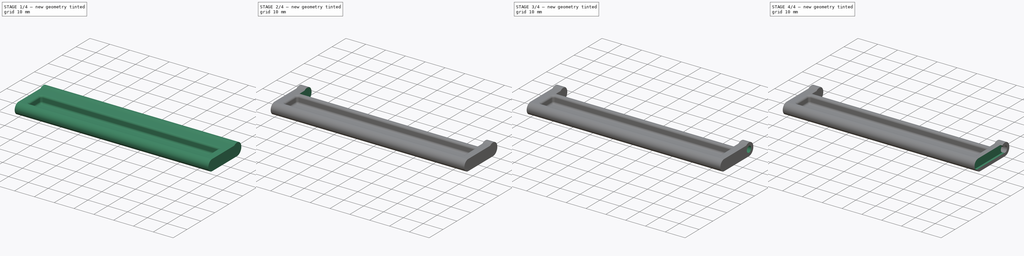
[diagram: build sequence overview — one tinted view per stage of 4, left to right]
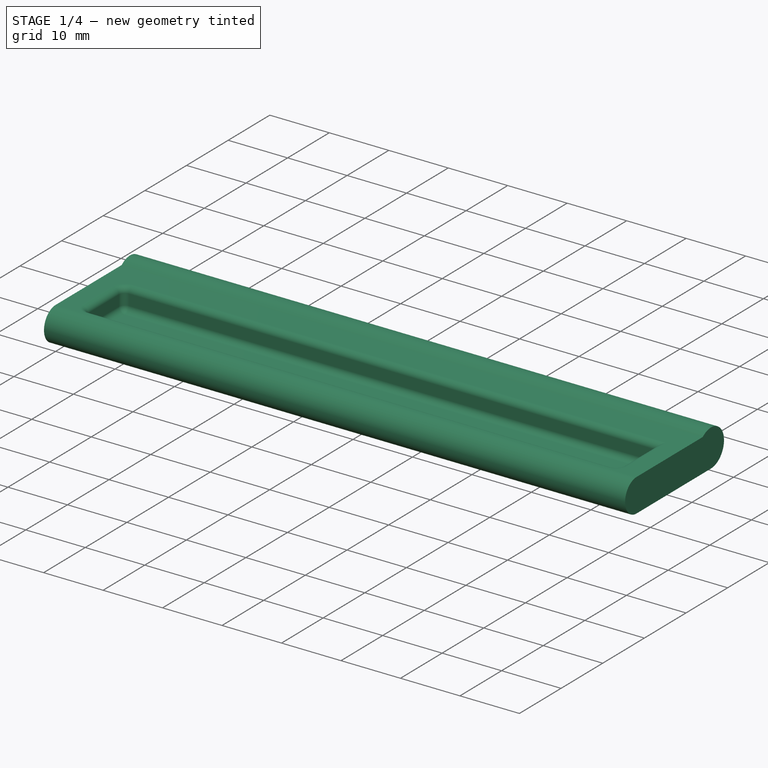
[diagram: stage 1 of 4 — iso view after this stage's code; geometry added in this stage tinted green]
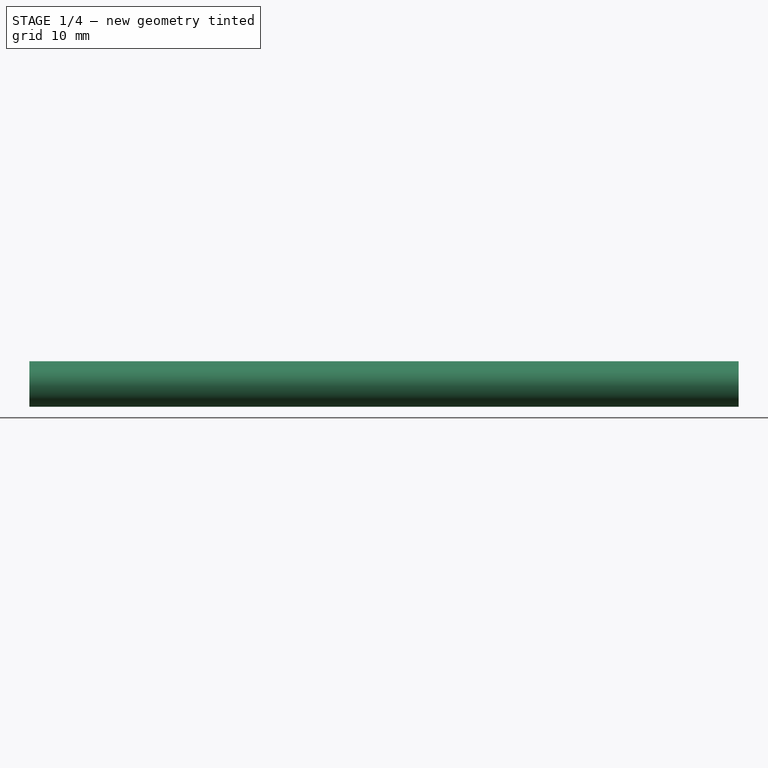
[diagram: stage 1 of 4 — front view after this stage's code; geometry added in this stage tinted green]
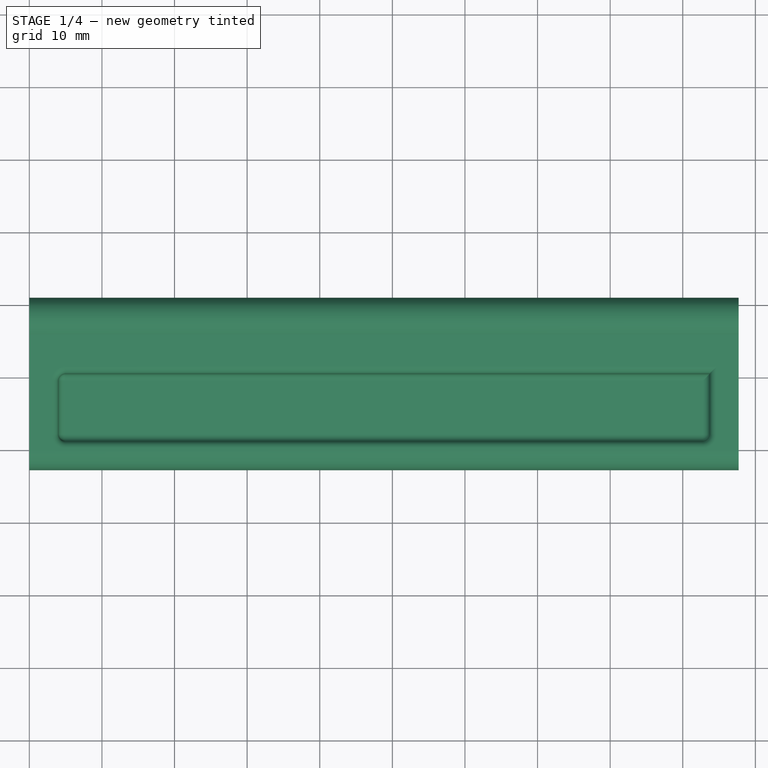
[diagram: stage 1 of 4 — top view after this stage's code; geometry added in this stage tinted green]
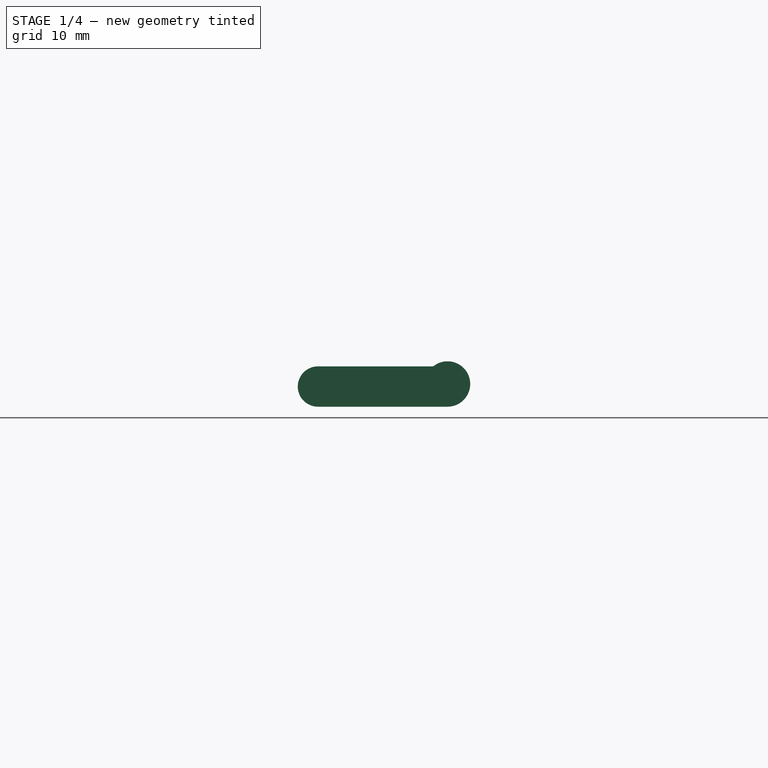
[diagram: stage 1 of 4 — right view after this stage's code; geometry added in this stage tinted green]
FCSTD DOCUMENT  (FreeCAD 0.19R24276 (Git))
Label: fechoLancheira
License: All rights reserved
LicenseURL: http://en.wikipedia.org/wiki/All_rights_reserved
objects: Sketcher::SketchObject×6, PartDesign::Pocket×5, PartDesign::Fillet×5, PartDesign::Pad×1, PartDesign::Body×1
note: 29 computed .brp shape members not serialized (recipe doc carries the construction recipe); baked Part::Feature solids carry a one-line shape summary decoded from their .brp

FEATURE [Sketcher::SketchObject] Sketch
  FullyConstrained = false
  MapMode = 5
  Placement = pos=(0,0,0) rot=(0.57735,0.57735,0.57735;2.0944rad)
  Support = -> [YZ_Plane]
  expr: Constraints[11] = 23.75 - 3.125 - 2.775
  expr: Constraints[7] = 6.25 / 2
  expr: Constraints[2] = 5.55 / 2
  sketch-geometry (4):
    g0: ArcOfCircle CenterX=5e-16 CenterY=2.775 CenterZ=0 NormalX=0 NormalY=0 NormalZ=1 AngleXU=0 Radius=2.775 StartAngle=1.5708 EndAngle=4.71239
    g1: LineSegment StartX=0 StartY=0 StartZ=0 EndX=17.85 EndY=0 EndZ=0
    g2: ArcOfCircle CenterX=17.85 CenterY=3.125 CenterZ=0 NormalX=0 NormalY=0 NormalZ=1 AngleXU=0 Radius=3.125 StartAngle=4.71239 EndAngle=8.53648
    g3: LineSegment StartX=0 StartY=5.55 StartZ=0 EndX=15.879 EndY=5.55 EndZ=0
  constraints (13):
    c: Coincident(g1,g0)
    c: Horizontal(g1)
    c: Distance(g0,g1) = 2.775
    c: DistanceX(g0) = 0
    c: DistanceY(g0) = 0
    c: DistanceX(g-2,g0) = 0
    c: Horizontal(g3)
    c: Radius(g2) = 3.125
    c: Coincident(g2,g1)
    c: Coincident(g2,g3)
    c: DistanceX(g2,g1) = 0
    c: DistanceX(g1,g1) = 17.85
    c: Coincident(g3,g0)
FEATURE [PartDesign::Pad] Pad
  Direction = (1,1,1)
  Length = 97.7
  Length2 = 100
  Placement = pos=(0,0,0) rot=(0.57735,0.57735,0.57735;2.0944rad)
  Profile = -> Sketch
  Type = 0
FEATURE [Sketcher::SketchObject] Sketch001
  FullyConstrained = true
  MapMode = 5
  Placement = pos=(-2.2e-15,3.1e-15,5.55) rot=(0,0,-1;1.5708rad)
  Support = -> [Pad]
  expr: Constraints[8] = 97.7 - 4 - 4
  sketch-geometry (4):
    g0: LineSegment StartX=-10.5 StartY=93.7 StartZ=0 EndX=-1.2 EndY=93.7 EndZ=0
    g1: LineSegment StartX=-1.2 StartY=93.7 StartZ=0 EndX=-1.2 EndY=4 EndZ=0
    g2: LineSegment StartX=-1.2 StartY=4 StartZ=0 EndX=-10.5 EndY=4 EndZ=0
    g3: LineSegment StartX=-10.5 StartY=4 StartZ=0 EndX=-10.5 EndY=93.7 EndZ=0
  constraints (12):
    c: Coincident(g0,g1)
    c: Coincident(g1,g2)
    c: Coincident(g2,g3)
    c: Coincident(g3,g0)
    c: Horizontal(g0)
    c: Horizontal(g2)
    c: Vertical(g1)
    c: Vertical(g3)
    c: DistanceY(g1,g1) = 89.7
    c: DistanceX(g2,g2) = 9.3
    c: DistanceX(g1) = -1.2
    c: DistanceY(g1) = 4
FEATURE [PartDesign::Pocket] Pocket
  BaseFeature = -> Pad
  Length = 3.8
  Length2 = 100
  Placement = pos=(0,0,0) rot=(0.57735,0.57735,0.57735;2.0944rad)
  Profile = -> Sketch001
  Type = 0
FEATURE [PartDesign::Fillet] Fillet
  Base = -> Pocket [Edge9,Edge8,Edge10,Edge11,Edge17,Edge19,Edge21,Edge20,Edge23,Edge22,Edge24]
  BaseFeature = -> Pocket
  Placement = pos=(0,0,0) rot=(0.57735,0.57735,0.57735;2.0944rad)
  Radius = 1
  SupportTransform = false
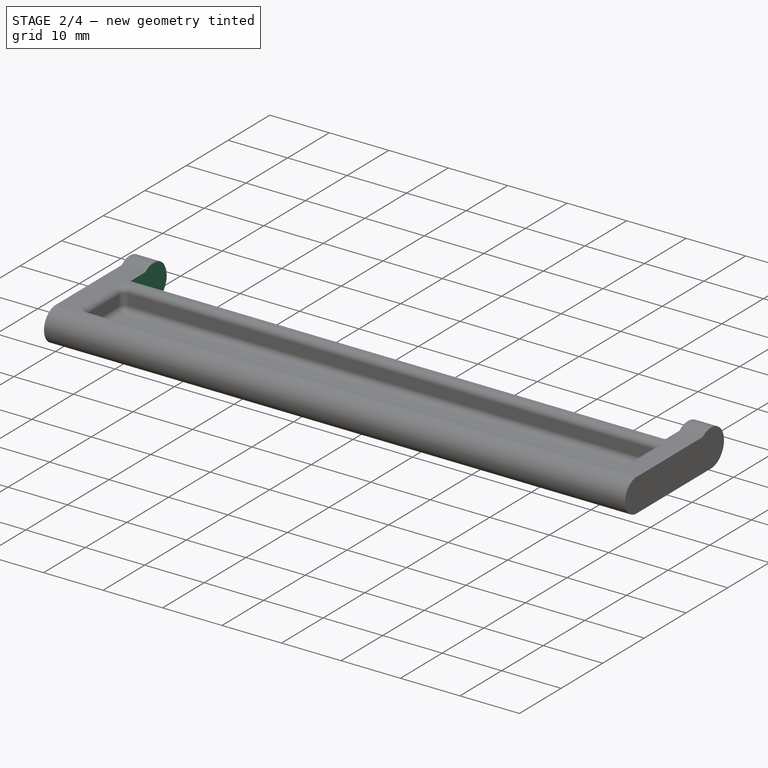
[diagram: stage 2 of 4 — iso view after this stage's code; geometry added in this stage tinted green]
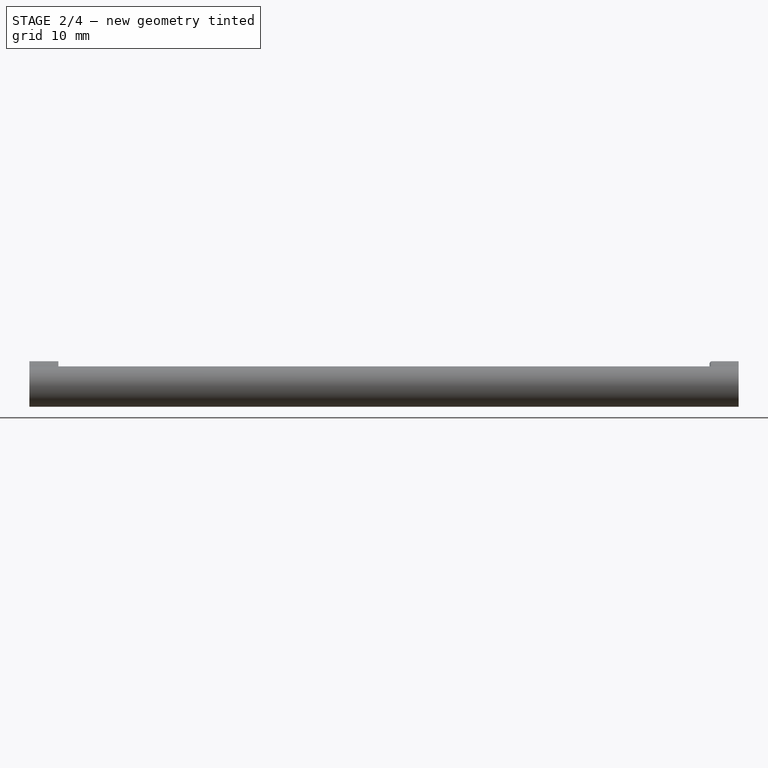
[diagram: stage 2 of 4 — front view after this stage's code; geometry added in this stage tinted green]
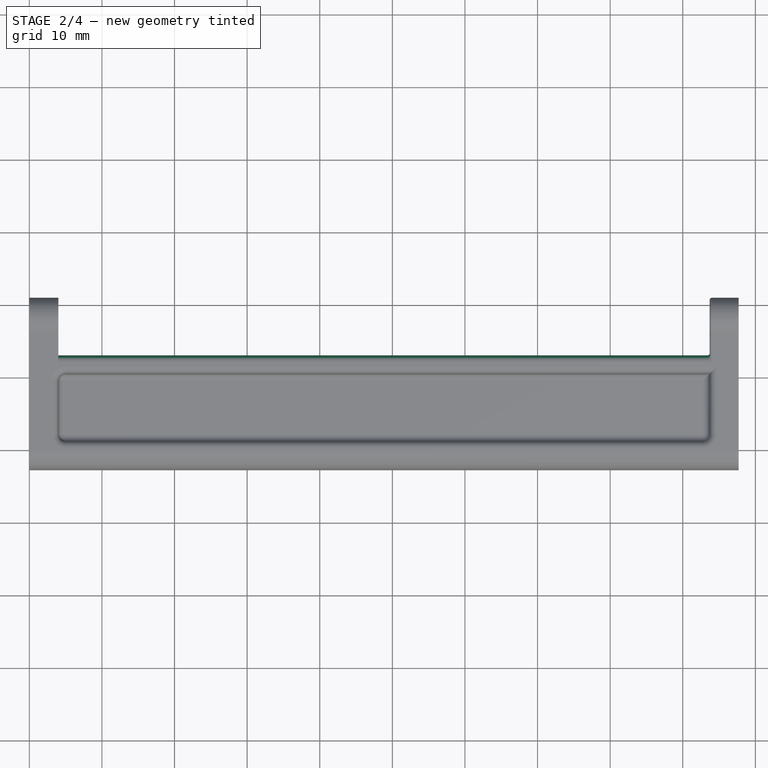
[diagram: stage 2 of 4 — top view after this stage's code; geometry added in this stage tinted green]
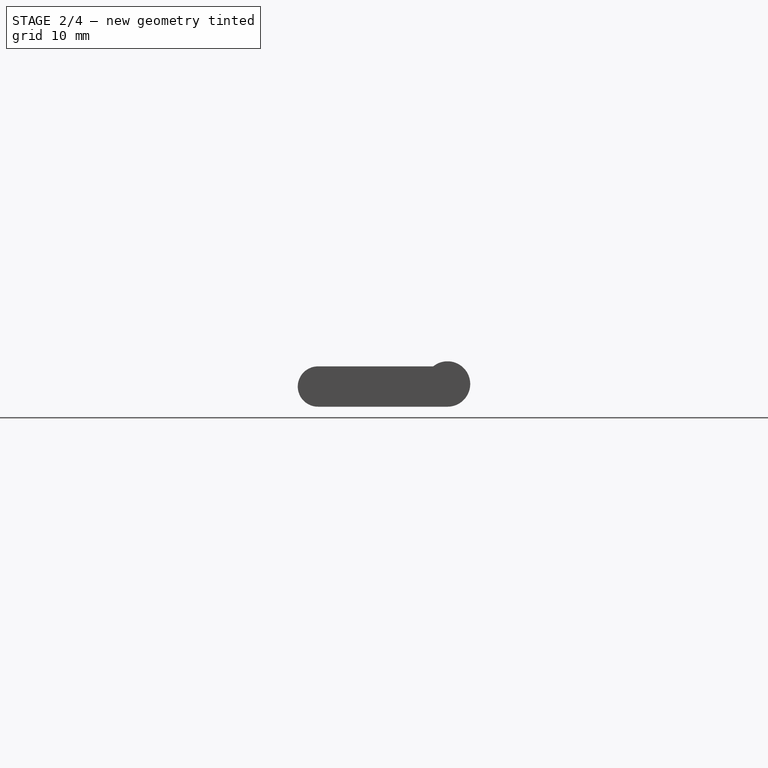
[diagram: stage 2 of 4 — right view after this stage's code; geometry added in this stage tinted green]
FEATURE [Sketcher::SketchObject] Sketch002
  FullyConstrained = true
  Placement = pos=(-4e-15,3.7e-15,8) rot=(0,0,-1;1.5708rad)
  Support = -> [Fillet]
  expr: Constraints[8] = 97.7 - 4 - 4
  expr: Constraints[10] = -(15.8 - 2.775)
  sketch-geometry (4):
    g0: LineSegment StartX=-21.025 StartY=93.7 StartZ=0 EndX=-13.025 EndY=93.7 EndZ=0
    g1: LineSegment StartX=-13.025 StartY=93.7 StartZ=0 EndX=-13.025 EndY=4 EndZ=0
    g2: LineSegment StartX=-13.025 StartY=4 StartZ=0 EndX=-21.025 EndY=4 EndZ=0
    g3: LineSegment StartX=-21.025 StartY=4 StartZ=0 EndX=-21.025 EndY=93.7 EndZ=0
  constraints (12):
    c: Coincident(g0,g1)
    c: Coincident(g1,g2)
    c: Coincident(g2,g3)
    c: Coincident(g3,g0)
    c: Horizontal(g0)
    c: Horizontal(g2)
    c: Vertical(g1)
    c: Vertical(g3)
    c: DistanceY(g1,g1) = 89.7
    c: DistanceX(g2,g2) = 8
    c: DistanceX(g1) = -13.025
    c: DistanceY(g1) = 4
FEATURE [PartDesign::Pocket] Pocket001
  BaseFeature = -> Fillet
  Length = 10
  Length2 = 100
  Placement = pos=(0,0,0) rot=(0.57735,0.57735,0.57735;2.0944rad)
  Profile = -> Sketch002
  Type = 0
FEATURE [PartDesign::Fillet] Fillet001
  Base = -> Pocket001 [Edge4,Edge23]
  BaseFeature = -> Pocket001
  Placement = pos=(0,0,0) rot=(0.57735,0.57735,0.57735;2.0944rad)
  Radius = 1
  SupportTransform = false
FEATURE [PartDesign::Fillet] Fillet002
  Base = -> Fillet001 [Face2]
  BaseFeature = -> Fillet001
  Placement = pos=(0,0,0) rot=(0.57735,0.57735,0.57735;2.0944rad)
  Radius = 0.3
  SupportTransform = false
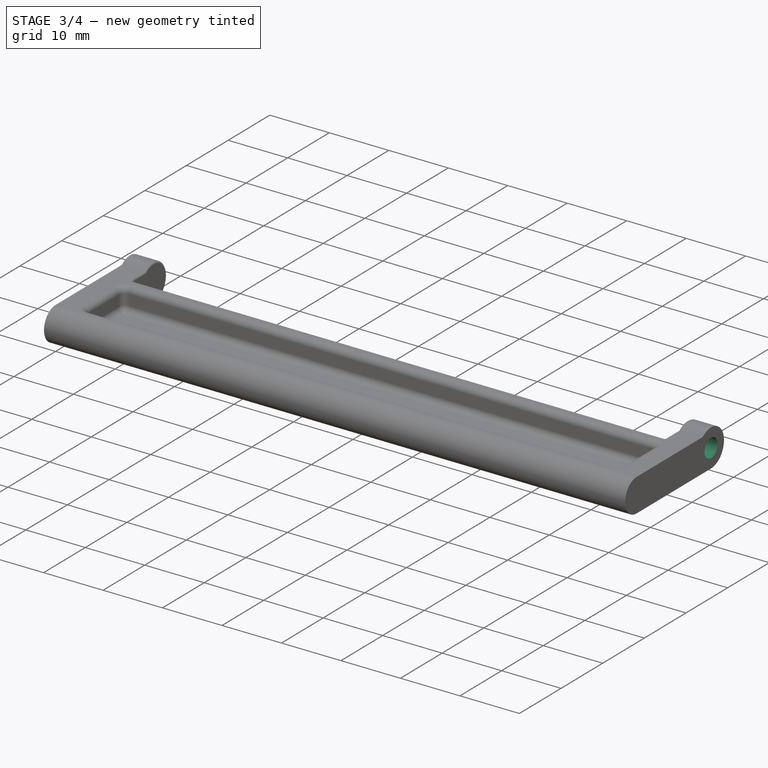
[diagram: stage 3 of 4 — iso view after this stage's code; geometry added in this stage tinted green]
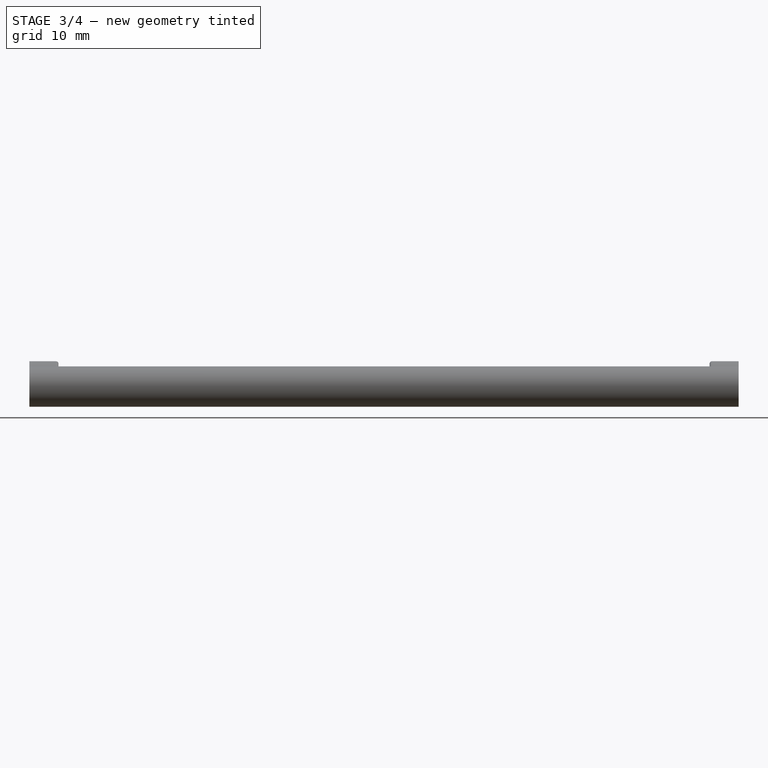
[diagram: stage 3 of 4 — front view after this stage's code; geometry added in this stage tinted green]
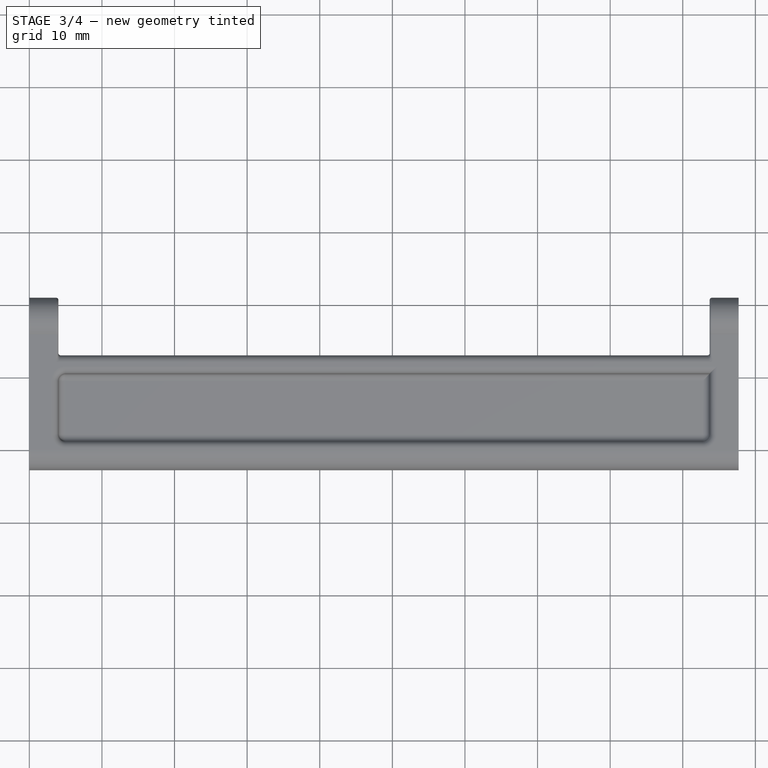
[diagram: stage 3 of 4 — top view after this stage's code; geometry added in this stage tinted green]
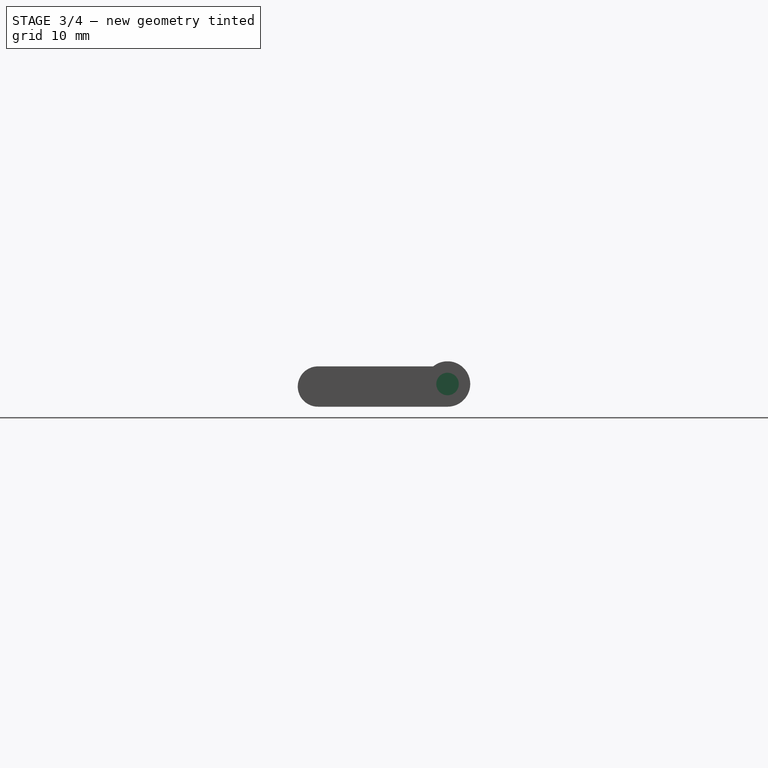
[diagram: stage 3 of 4 — right view after this stage's code; geometry added in this stage tinted green]
FEATURE [PartDesign::Fillet] Fillet003
  Base = -> Fillet002 [Face9]
  BaseFeature = -> Fillet002
  Placement = pos=(0,0,0) rot=(0.57735,0.57735,0.57735;2.0944rad)
  Radius = 0.3
  SupportTransform = false
FEATURE [Sketcher::SketchObject] Sketch003
  FullyConstrained = true
  MapMode = 5
  Placement = pos=(97.7,-8.68e-14,5.42e-14) rot=(0.57735,0.57735,0.57735;2.0944rad)
  Support = -> [Fillet003]
  expr: Constraints[2] = 3.1 / 2
  sketch-geometry (1):
    g0: Circle CenterX=17.85 CenterY=3.125 CenterZ=0 NormalX=0 NormalY=0 NormalZ=1 AngleXU=0 Radius=1.55
  constraints (3):
    c: DistanceX(g0) = 17.85
    c: DistanceY(g0) = 3.125
    c: Radius(g0) = 1.55
FEATURE [PartDesign::Pocket] Pocket002
  BaseFeature = -> Fillet003
  Length = 3.3
  Length2 = 100
  Placement = pos=(0,0,0) rot=(0.57735,0.57735,0.57735;2.0944rad)
  Profile = -> Sketch003
  Type = 0
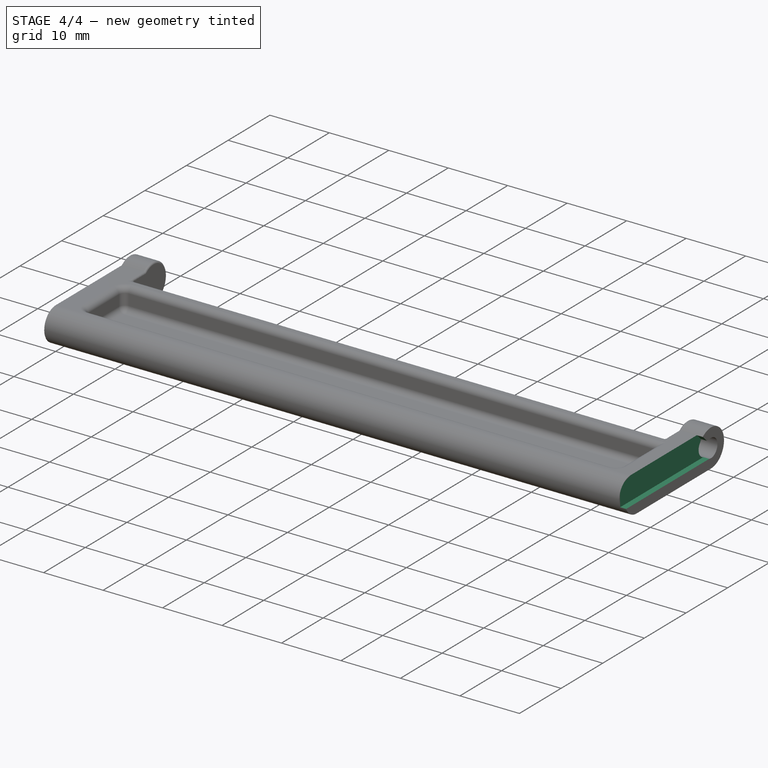
[diagram: stage 4 of 4 — iso view after this stage's code; geometry added in this stage tinted green]
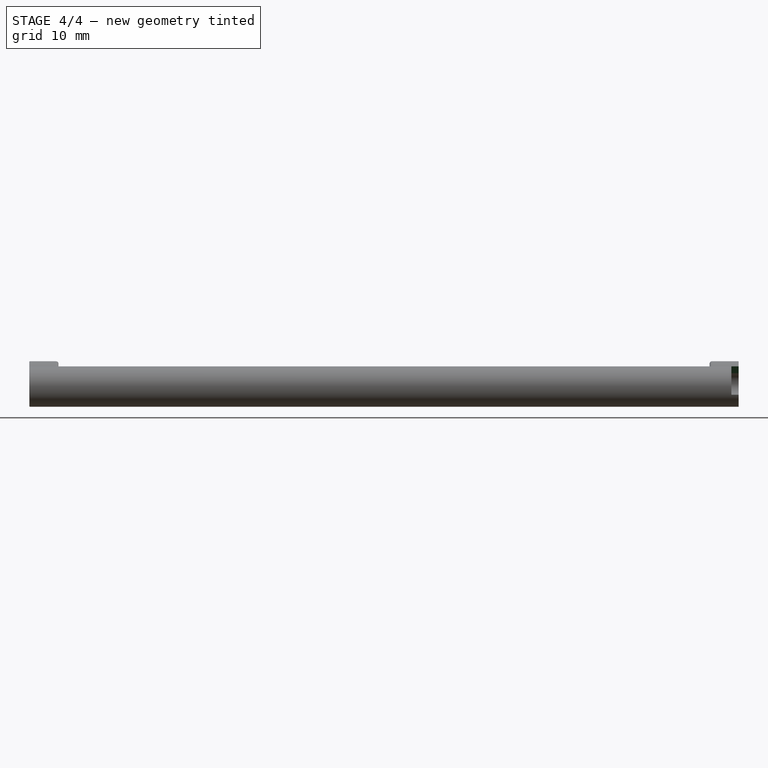
[diagram: stage 4 of 4 — front view after this stage's code; geometry added in this stage tinted green]
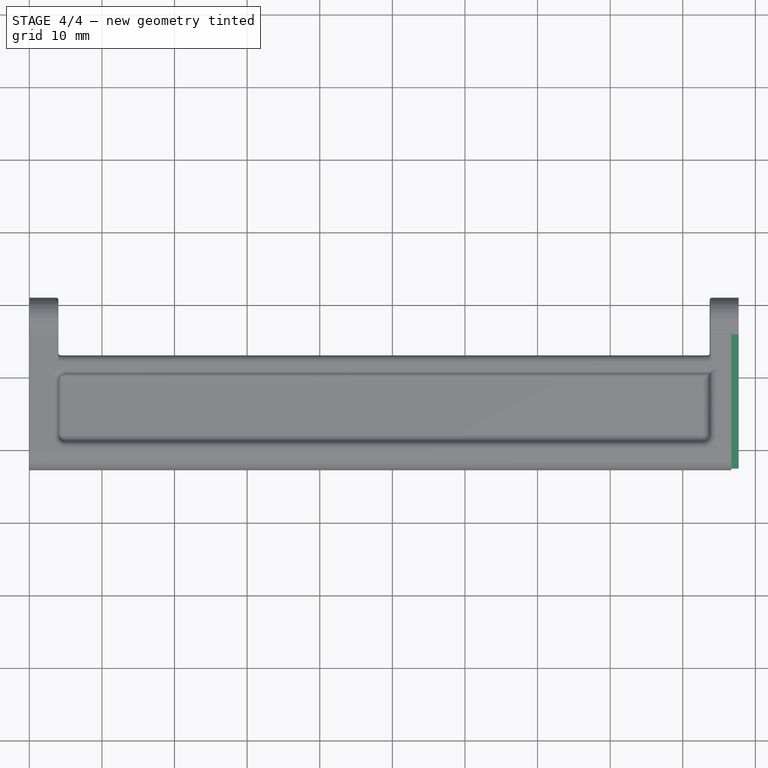
[diagram: stage 4 of 4 — top view after this stage's code; geometry added in this stage tinted green]
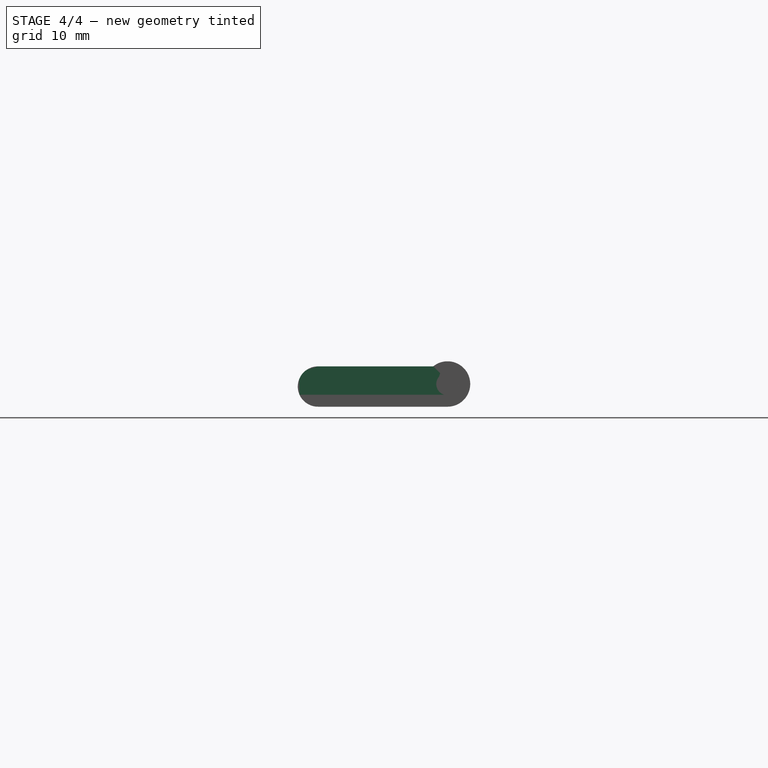
[diagram: stage 4 of 4 — right view after this stage's code; geometry added in this stage tinted green]
FEATURE [Sketcher::SketchObject] Sketch004
  FullyConstrained = true
  MapMode = 5
  Placement = pos=(-1.06e-14,0,0) rot=(-0.57735,-0.57735,0.57735;2.0944rad)
  Support = -> [Pocket002]
  expr: Constraints[2] = 3.1 / 2
  sketch-geometry (1):
    g0: Circle CenterX=17.85 CenterY=-3.125 CenterZ=0 NormalX=0 NormalY=0 NormalZ=1 AngleXU=0 Radius=1.55
  constraints (3):
    c: DistanceX(g0) = 17.85
    c: DistanceY(g0) = -3.125
    c: Radius(g0) = 1.55
FEATURE [PartDesign::Pocket] Pocket003
  BaseFeature = -> Pocket002
  Length = 3.3
  Length2 = 100
  Placement = pos=(0,0,0) rot=(0.57735,0.57735,0.57735;2.0944rad)
  Profile = -> Sketch004
  Type = 0
FEATURE [PartDesign::Fillet] Fillet004
  Base = -> Pocket003 [Face4]
  BaseFeature = -> Pocket003
  Placement = pos=(0,0,0) rot=(0.57735,0.57735,0.57735;2.0944rad)
  Radius = 0.1
  SupportTransform = false
FEATURE [Sketcher::SketchObject] Sketch005
  FullyConstrained = true
  MapMode = 5
  Placement = pos=(97.7,-1.302e-13,7.59e-14) rot=(0.57735,0.57735,0.57735;2.0944rad)
  Support = -> [Fillet004]
  sketch-geometry (6):
    g0: LineSegment StartX=-4.41139 StartY=1.63595 StartZ=0 EndX=17.9115 EndY=1.63595 EndZ=0
    g1: LineSegment StartX=17.9115 StartY=1.63595 StartZ=0 EndX=17.9115 EndY=4.61249 EndZ=0
    g2: LineSegment StartX=17.9115 StartY=4.61249 StartZ=0 EndX=16.8415 EndY=4.61249 EndZ=0
    g3: LineSegment StartX=16.8415 StartY=4.61249 StartZ=0 EndX=15.9115 EndY=5.55 EndZ=0
    g4: LineSegment StartX=15.9115 StartY=5.55 StartZ=0 EndX=-4.41139 EndY=5.55 EndZ=0
    g5: LineSegment StartX=-4.41139 StartY=5.55 StartZ=0 EndX=-4.41139 EndY=1.63595 EndZ=0
  constraints (18):
    c: Horizontal(g0)
    c: Coincident(g0,g1)
    c: Coincident(g1,g2)
    c: Coincident(g2,g3)
    c: Coincident(g3,g4)
    c: Horizontal(g4)
    c: Coincident(g4,g5)
    c: Coincident(g5,g0)
    c: Vertical(g5)
    c: Vertical(g1)
    c: Horizontal(g2)
    c: DistanceX(g0) = 17.9115
    c: DistanceY(g0) = 1.63595
    c: DistanceY(g1) = 4.61249
    c: DistanceY(g3) = 5.55
    c: DistanceX(g0) = -4.41139
    c: DistanceX(g2,g1) = 1.07
    c: DistanceX(g3,g2) = 0.93
FEATURE [PartDesign::Pocket] Pocket004
  BaseFeature = -> Fillet004
  Length = 1
  Length2 = 100
  Placement = pos=(0,0,0) rot=(0.57735,0.57735,0.57735;2.0944rad)
  Profile = -> Sketch005
  Type = 0
FEATURE [PartDesign::Body] Body
  Group = -> [Sketch,Pad,Sketch001,Pocket,Fillet,Sketch002,Pocket001,Fillet001,Fillet002,Fillet003,Sketch003,Pocket002,Sketch004,Pocket003,Fillet004,Sketch005,Pocket004]
  Origin = -> Origin
  Tip = -> Pocket004
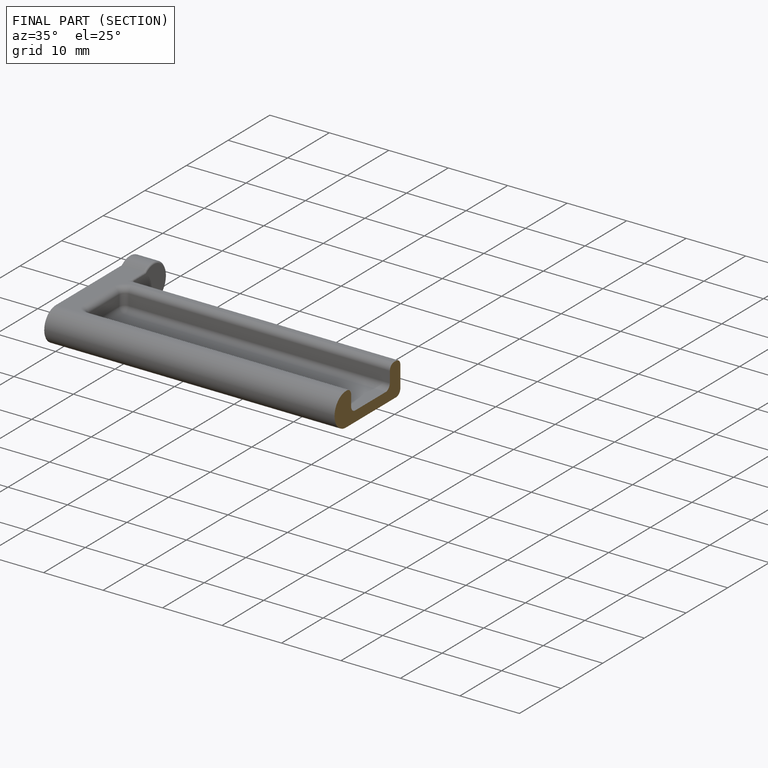
[diagram: finished part — half-section view (interior)]
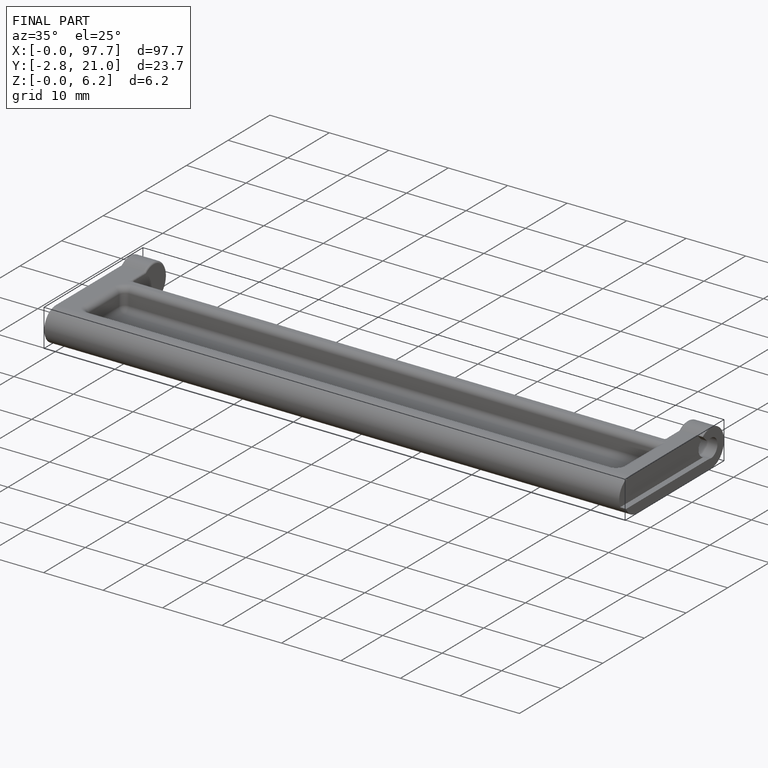
[diagram: finished part — iso view with bounding-box wireframe]
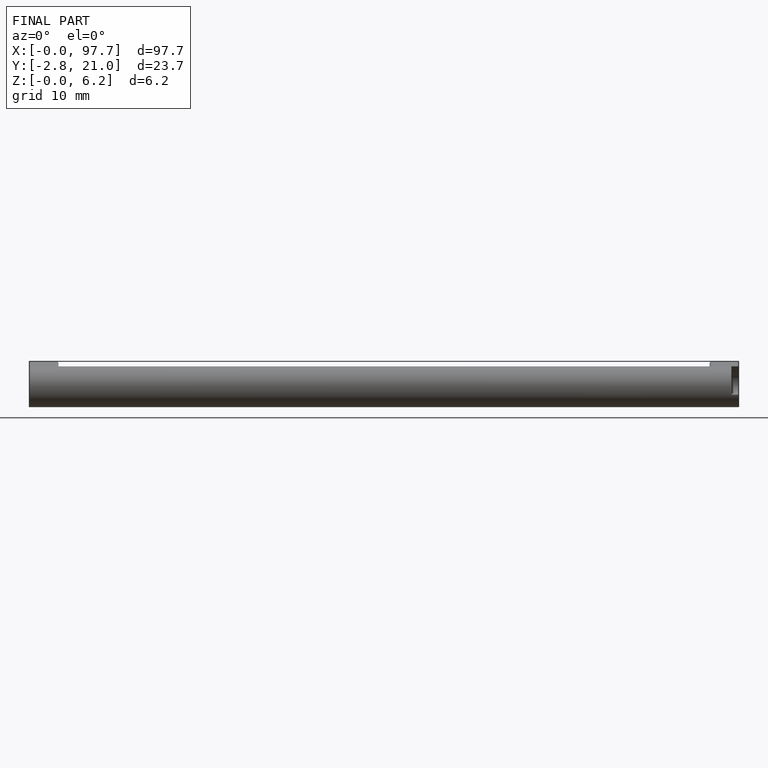
[diagram: finished part — front view with bounding-box wireframe]
